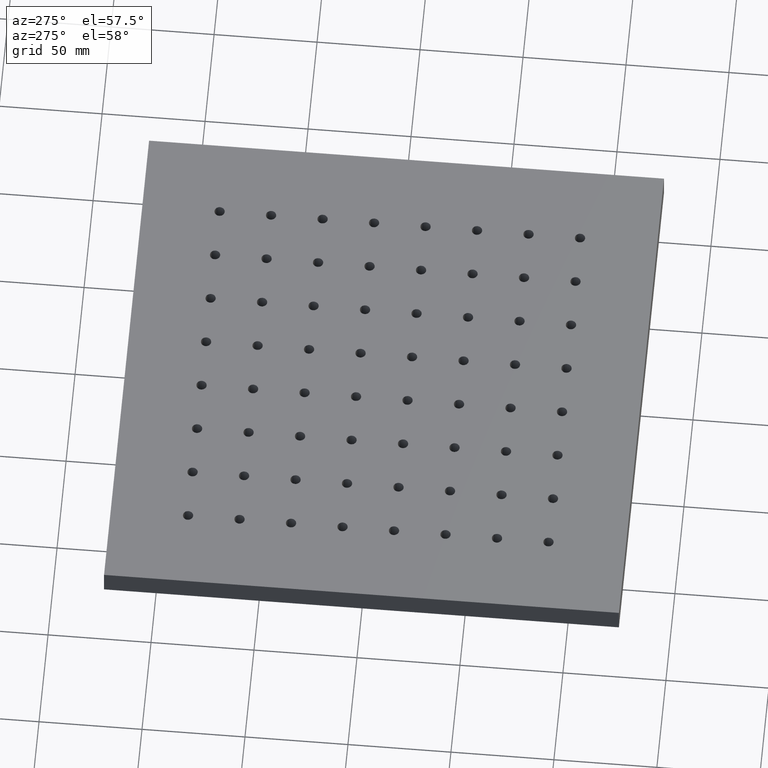
[diagram: clean part render]
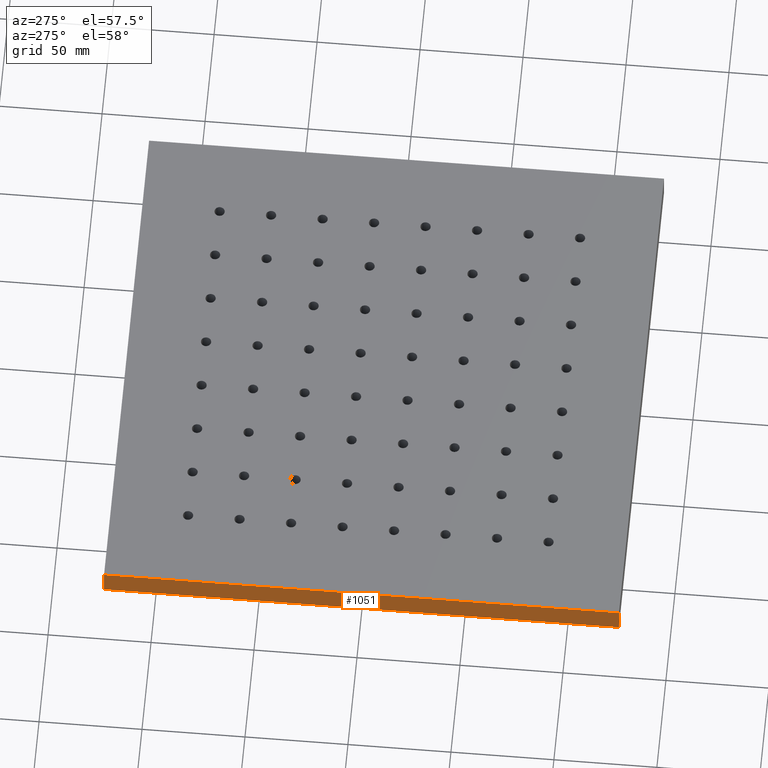
[diagram: same view with one face highlighted and labeled with its STEP entity id]
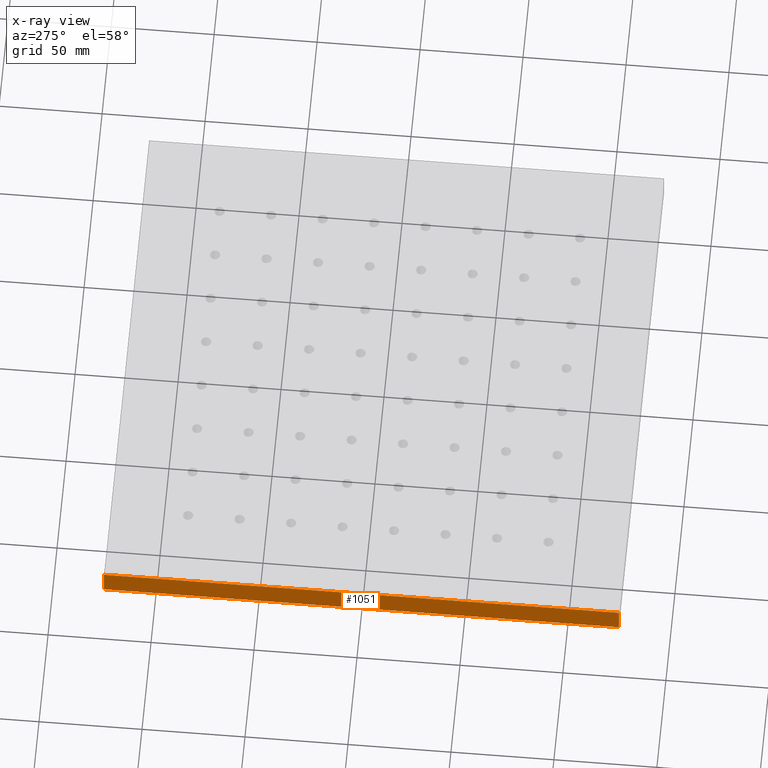
[diagram: x-ray of the same camera — body ghosted, the highlighted face saturated]
A machine part, auxiliary view. The second image highlights one B-rep face of the part: STEP entity #1051.
The next image is the same camera in x-ray: the body ghosted, the highlighted face saturated — about 0% of this face is hidden behind the body in this view.
In plain terms, the highlighted planar face has unit normal (1, 0, -0).
Its self-contained STEP definition (entity closure, byte-faithful):
#290 = VERTEX_POINT ( 'NONE', #2171 ) ;
#415 = DIRECTION ( 'NONE',  ( -0.0000000000000000000, -0.0000000000000000000, -1.000000000000000000 ) ) ;
#541 = VERTEX_POINT ( 'NONE', #969 ) ;
#755 = VECTOR ( 'NONE', #415, 1000.000000000000000 ) ;
#903 = VERTEX_POINT ( 'NONE', #2445 ) ;
#958 = DIRECTION ( 'NONE',  ( -1.110223024625156500E-016, 1.000000000000000000, 0.0000000000000000000 ) ) ;
#969 = CARTESIAN_POINT ( 'NONE',  ( -125.0000000000000000, -125.0000000000000000, 0.0000000000000000000 ) ) ;
#977 = DIRECTION ( 'NONE',  ( 1.000000000000000000, 1.110223024625156500E-016, -0.0000000000000000000 ) ) ;
#1016 = CARTESIAN_POINT ( 'NONE',  ( -125.0000000000000300, 124.9999999999999900, 13.00000000000000000 ) ) ;
#1051 = ADVANCED_FACE ( 'NONE', ( #3383 ), #1393, .F. ) ;
#1393 = PLANE ( 'NONE',  #1692 ) ;
#1418 = CARTESIAN_POINT ( 'NONE',  ( -125.0000000000000300, 124.9999999999999900, 0.0000000000000000000 ) ) ;
#1658 = ORIENTED_EDGE ( 'NONE', *, *, #3485, .T. ) ;
#1672 = VERTEX_POINT ( 'NONE', #2636 ) ;
#1692 = AXIS2_PLACEMENT_3D ( 'NONE', #1016, #977, #958 ) ;
#1758 = VECTOR ( 'NONE', #1812, 1000.000000000000000 ) ;
#1812 = DIRECTION ( 'NONE',  ( 1.110223024625156500E-016, -1.000000000000000000, 0.0000000000000000000 ) ) ;
#2077 = DIRECTION ( 'NONE',  ( -0.0000000000000000000, -0.0000000000000000000, -1.000000000000000000 ) ) ;
#2171 = CARTESIAN_POINT ( 'NONE',  ( -125.0000000000000300, 124.9999999999999900, 13.00000000000000000 ) ) ;
#2179 = DIRECTION ( 'NONE',  ( 1.110223024625156500E-016, -1.000000000000000000, 0.0000000000000000000 ) ) ;
#2407 = EDGE_CURVE ( 'NONE', #290, #903, #2880, .T. ) ;
#2445 = CARTESIAN_POINT ( 'NONE',  ( -125.0000000000000300, 124.9999999999999900, 0.0000000000000000000 ) ) ;
#2611 = ORIENTED_EDGE ( 'NONE', *, *, #2407, .T. ) ;
#2636 = CARTESIAN_POINT ( 'NONE',  ( -125.0000000000000000, -125.0000000000000000, 13.00000000000000000 ) ) ;
#2768 = LINE ( 'NONE', #3692, #1758 ) ;
#2880 = LINE ( 'NONE', #3816, #755 ) ;
#2916 = ORIENTED_EDGE ( 'NONE', *, *, #4317, .F. ) ;
#3081 = LINE ( 'NONE', #1418, #3608 ) ;
#3264 = ORIENTED_EDGE ( 'NONE', *, *, #4169, .F. ) ;
#3383 = FACE_OUTER_BOUND ( 'NONE', #3512, .T. ) ;
#3485 = EDGE_CURVE ( 'NONE', #903, #541, #3081, .T. ) ;
#3512 = EDGE_LOOP ( 'NONE', ( #1658, #3264, #2916, #2611 ) ) ;
#3608 = VECTOR ( 'NONE', #2179, 1000.000000000000000 ) ;
#3692 = CARTESIAN_POINT ( 'NONE',  ( -125.0000000000000300, 124.9999999999999900, 13.00000000000000000 ) ) ;
#3816 = CARTESIAN_POINT ( 'NONE',  ( -125.0000000000000300, 124.9999999999999900, 13.00000000000000000 ) ) ;
#4169 = EDGE_CURVE ( 'NONE', #1672, #541, #4275, .T. ) ;
#4275 = LINE ( 'NONE', #4749, #4522 ) ;
#4317 = EDGE_CURVE ( 'NONE', #290, #1672, #2768, .T. ) ;
#4522 = VECTOR ( 'NONE', #2077, 1000.000000000000000 ) ;
#4749 = CARTESIAN_POINT ( 'NONE',  ( -125.0000000000000000, -125.0000000000000000, 13.00000000000000000 ) ) ;